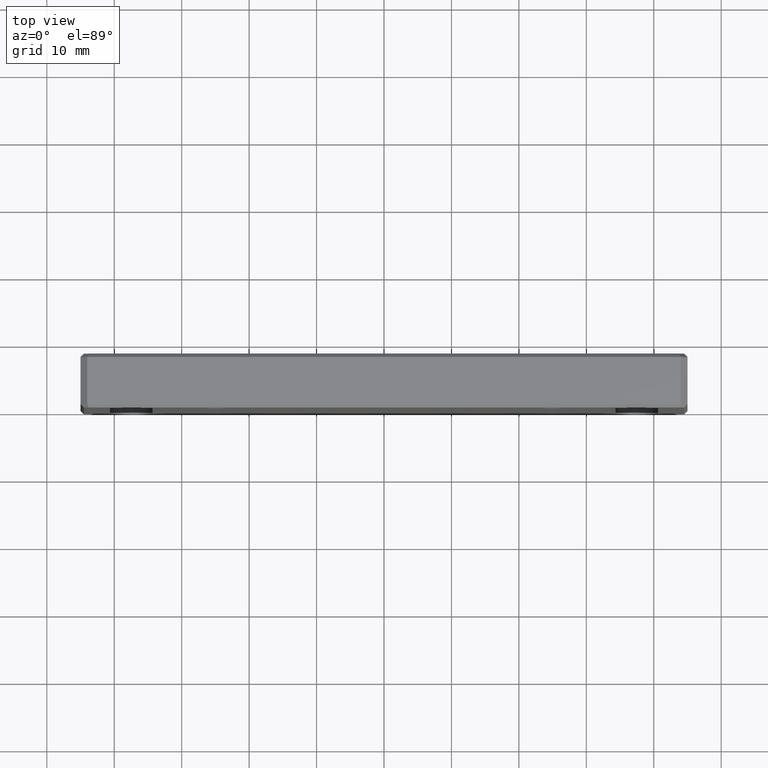
[diagram: clean part render]
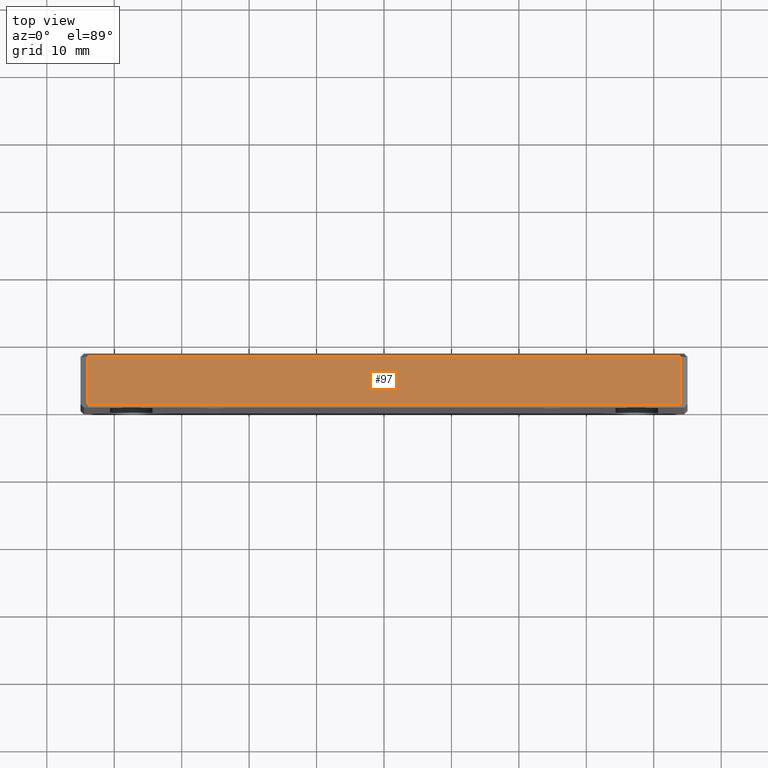
[diagram: same view with one face highlighted and labeled with its STEP entity id]
A machine part, top view. The second image highlights one B-rep face of the part: STEP entity #97.
In plain terms, the highlighted planar face has unit normal (0, 0, -1).
Its self-contained STEP definition (entity closure, byte-faithful):
#5 = DIRECTION ( 'NONE',  ( 0.000000000000000000, 1.000000000000000000, 0.000000000000000000 ) ) ;
#31 = VECTOR ( 'NONE', #1021, 1000.000000000000000 ) ;
#58 = CARTESIAN_POINT ( 'NONE',  ( -45.00000000000001421, 0.5000000000000004441, 30.00000000000000000 ) ) ;
#66 = ORIENTED_EDGE ( 'NONE', *, *, #483, .T. ) ;
#82 = EDGE_LOOP ( 'NONE', ( #348, #1115, #66, #340 ) ) ;
#90 = LINE ( 'NONE', #58, #31 ) ;
#97 = ADVANCED_FACE ( 'NONE', ( #508 ), #1590, .F. ) ;
#219 = CARTESIAN_POINT ( 'NONE',  ( -44.00000000000001421, 0.5000000000000004441, 30.00000000000000000 ) ) ;
#224 = DIRECTION ( 'NONE',  ( 0.000000000000000000, -1.000000000000000000, 0.000000000000000000 ) ) ;
#234 = AXIS2_PLACEMENT_3D ( 'NONE', #390, #1045, #254 ) ;
#254 = DIRECTION ( 'NONE',  ( -1.000000000000000000, 0.000000000000000000, -0.000000000000000000 ) ) ;
#287 = EDGE_CURVE ( 'NONE', #1012, #1501, #1288, .T. ) ;
#340 = ORIENTED_EDGE ( 'NONE', *, *, #287, .T. ) ;
#348 = ORIENTED_EDGE ( 'NONE', *, *, #734, .T. ) ;
#363 = LINE ( 'NONE', #1668, #570 ) ;
#390 = CARTESIAN_POINT ( 'NONE',  ( -45.00000000000001421, 8.000000000000000000, 30.00000000000000000 ) ) ;
#479 = CARTESIAN_POINT ( 'NONE',  ( 44.00000000000001421, 0.4999999999999987232, 30.00000000000000000 ) ) ;
#483 = EDGE_CURVE ( 'NONE', #820, #1012, #532, .T. ) ;
#508 = FACE_OUTER_BOUND ( 'NONE', #82, .T. ) ;
#532 = LINE ( 'NONE', #1206, #741 ) ;
#570 = VECTOR ( 'NONE', #224, 1000.000000000000000 ) ;
#679 = CARTESIAN_POINT ( 'NONE',  ( -44.00000000000001421, 7.500000000000000000, 30.00000000000000000 ) ) ;
#734 = EDGE_CURVE ( 'NONE', #1501, #1586, #363, .T. ) ;
#741 = VECTOR ( 'NONE', #5, 1000.000000000000000 ) ;
#820 = VERTEX_POINT ( 'NONE', #479 ) ;
#834 = CARTESIAN_POINT ( 'NONE',  ( 44.00000000000001421, 7.500000000000000000, 30.00000000000000000 ) ) ;
#876 = CARTESIAN_POINT ( 'NONE',  ( -44.00000000000001421, 7.500000000000000000, 30.00000000000000000 ) ) ;
#1012 = VERTEX_POINT ( 'NONE', #834 ) ;
#1021 = DIRECTION ( 'NONE',  ( 1.000000000000000000, 0.000000000000000000, 0.000000000000000000 ) ) ;
#1045 = DIRECTION ( 'NONE',  ( 0.000000000000000000, 0.000000000000000000, -1.000000000000000000 ) ) ;
#1105 = VECTOR ( 'NONE', #1690, 1000.000000000000000 ) ;
#1115 = ORIENTED_EDGE ( 'NONE', *, *, #1185, .T. ) ;
#1185 = EDGE_CURVE ( 'NONE', #1586, #820, #90, .T. ) ;
#1206 = CARTESIAN_POINT ( 'NONE',  ( 44.00000000000001421, 8.000000000000000000, 30.00000000000000000 ) ) ;
#1288 = LINE ( 'NONE', #876, #1105 ) ;
#1501 = VERTEX_POINT ( 'NONE', #679 ) ;
#1586 = VERTEX_POINT ( 'NONE', #219 ) ;
#1590 = PLANE ( 'NONE',  #234 ) ;
#1668 = CARTESIAN_POINT ( 'NONE',  ( -44.00000000000001421, 8.000000000000000000, 30.00000000000000000 ) ) ;
#1690 = DIRECTION ( 'NONE',  ( -1.000000000000000000, 0.000000000000000000, 0.000000000000000000 ) ) ;